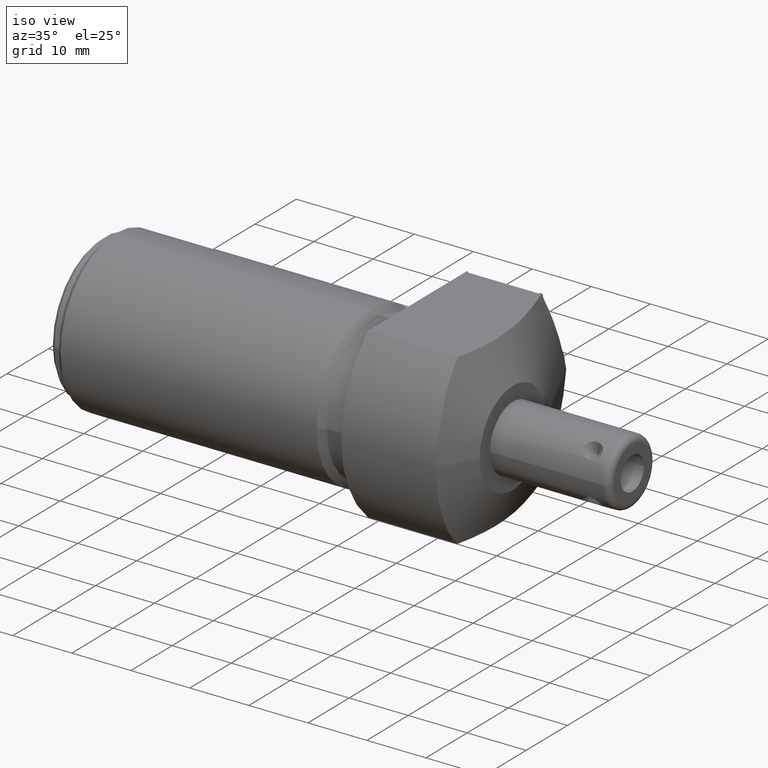
[diagram: clean part render]
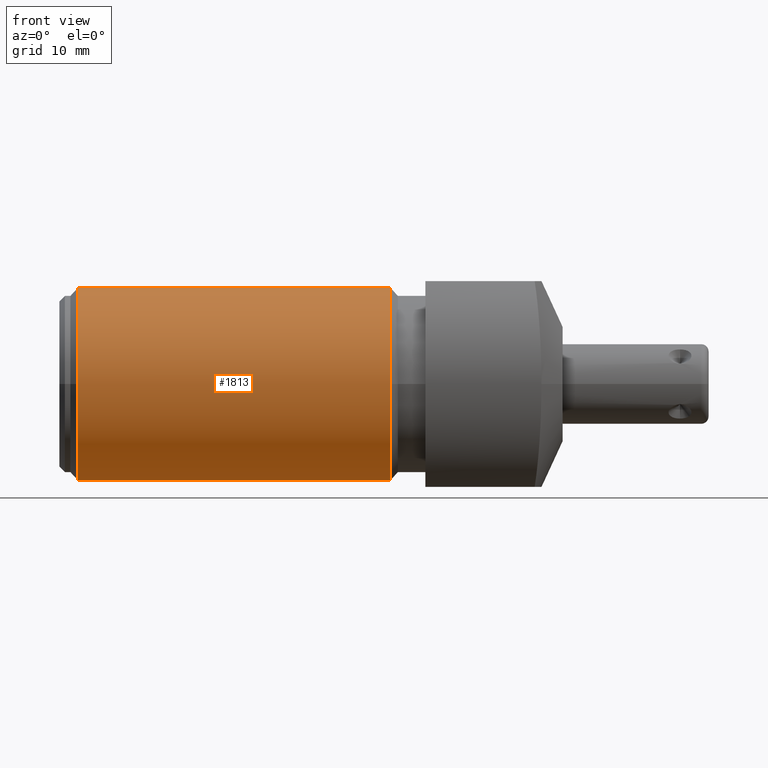
[diagram: tour spotlight — one face highlighted and labeled with its STEP entity id]
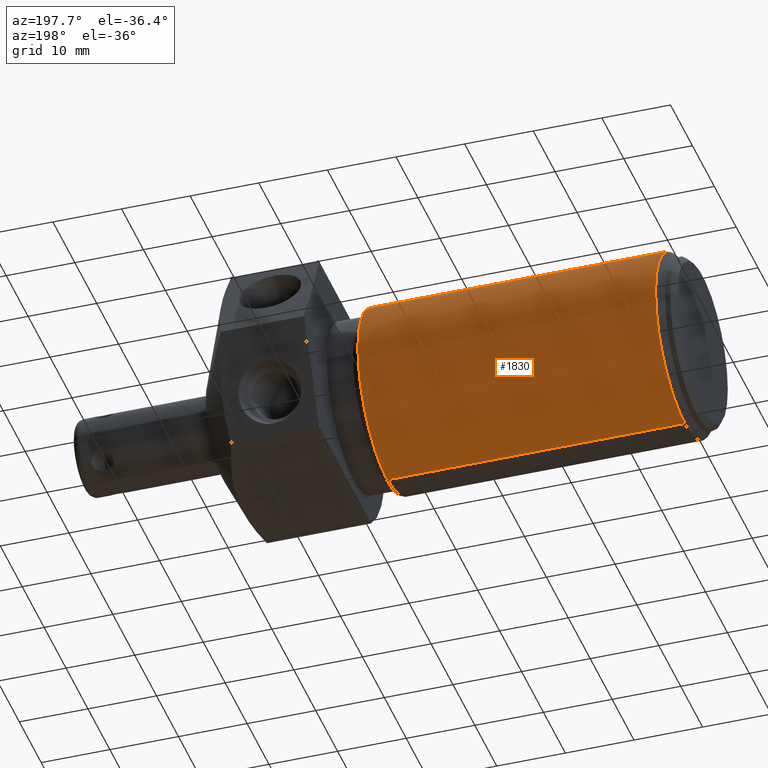
[diagram: tour spotlight — one face highlighted and labeled with its STEP entity id]
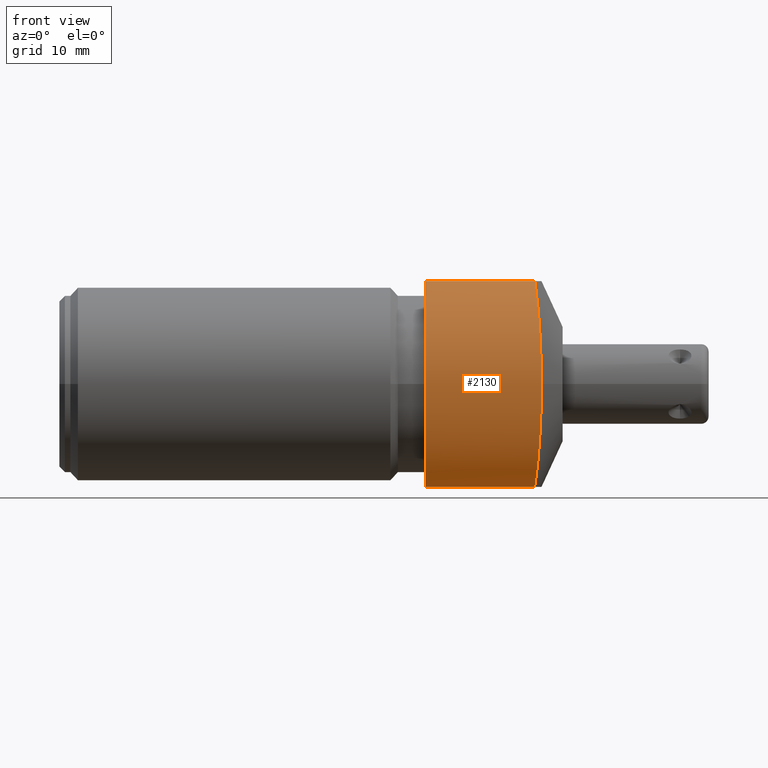
[diagram: tour spotlight — one face highlighted and labeled with its STEP entity id]
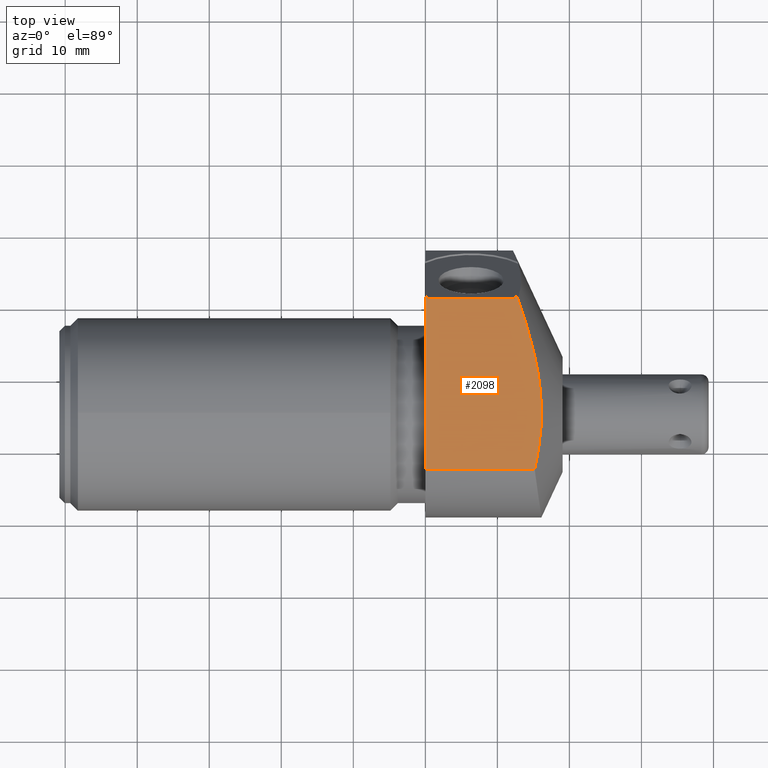
[diagram: tour spotlight — one face highlighted and labeled with its STEP entity id]
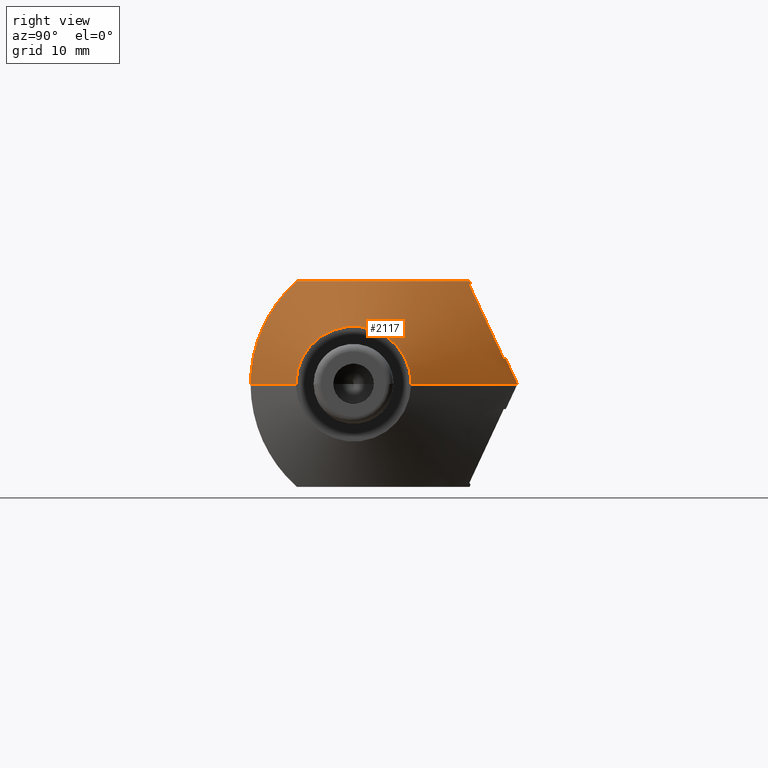
[diagram: tour spotlight — one face highlighted and labeled with its STEP entity id]
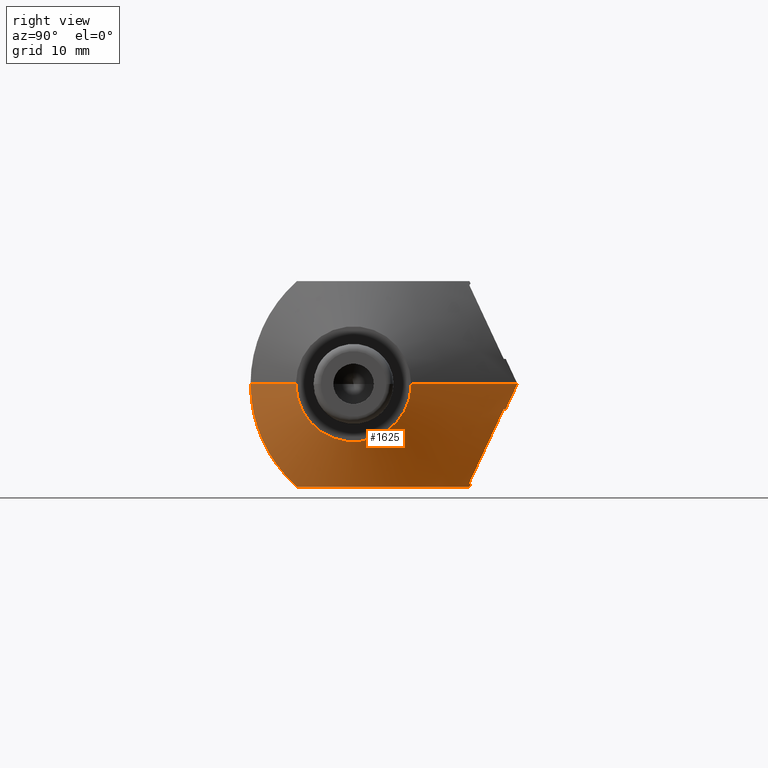
[diagram: tour spotlight — one face highlighted and labeled with its STEP entity id]
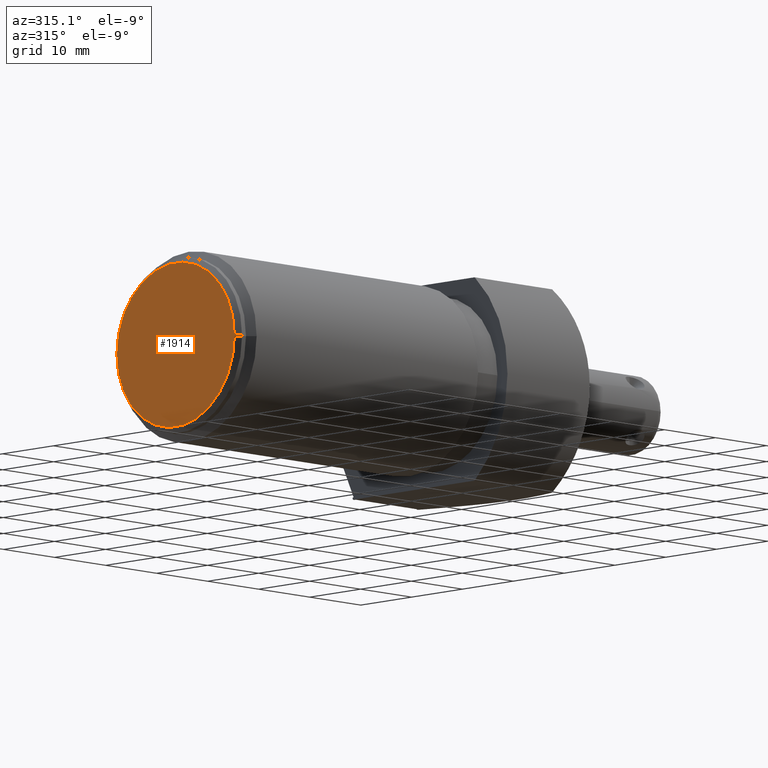
[diagram: tour spotlight — one face highlighted and labeled with its STEP entity id]
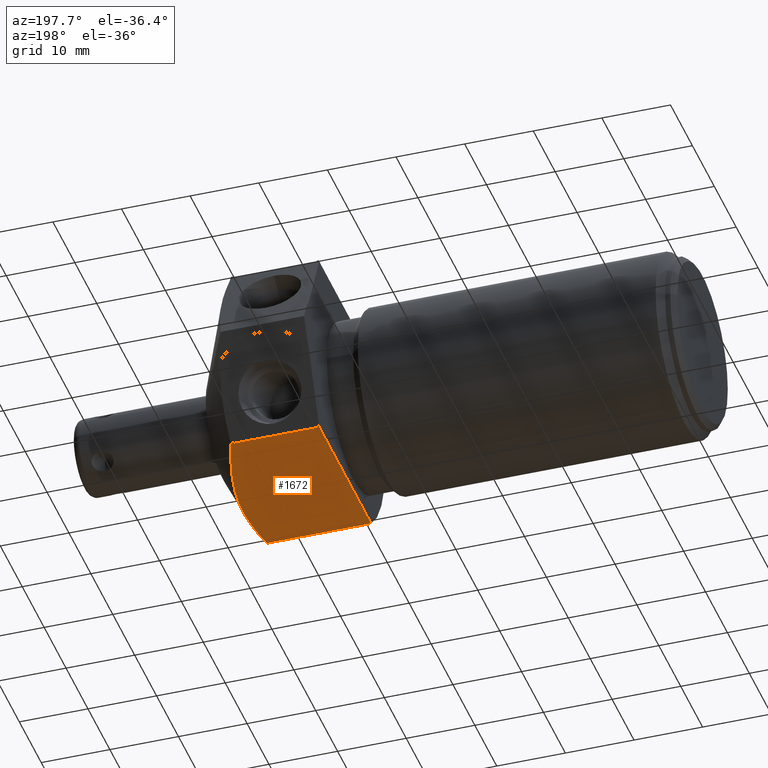
[diagram: tour spotlight — one face highlighted and labeled with its STEP entity id]
A machine part: a face-by-face anatomy tour. The part has 68 B-rep faces; the first image is the clean iso view, then the 8 largest visible faces are spotlighted one at a time (largest first), each with its STEP entity span.

Face 1 — front view, entity #1813. In plain terms, the highlighted cylindrical surface (partial cylindrical patch) has radius 13.3604 mm, axis along (1, 0, 0).
Definition (entity closure, byte-faithful):
#431=CARTESIAN_POINT('',(-1.91E-1,-1.87E-1,0.E0));
#432=DIRECTION('',(1.E0,0.E0,0.E0));
#433=DIRECTION('',(0.E0,0.E0,1.E0));
#434=AXIS2_PLACEMENT_3D('',#431,#432,#433);
#461=DIRECTION('',(-1.E0,0.E0,0.E0));
#462=VECTOR('',#461,1.708E0);
#463=CARTESIAN_POINT('',(-1.91E-1,-1.87E-1,-5.26E-1));
#464=LINE('',#463,#462);
#468=DIRECTION('',(-1.E0,0.E0,0.E0));
#469=VECTOR('',#468,1.708E0);
#470=CARTESIAN_POINT('',(-1.91E-1,-1.87E-1,5.26E-1));
#471=LINE('',#470,#469);
#475=CARTESIAN_POINT('',(-1.91E-1,-1.87E-1,0.E0));
#476=DIRECTION('',(1.E0,0.E0,0.E0));
#477=DIRECTION('',(0.E0,-1.E0,0.E0));
#478=AXIS2_PLACEMENT_3D('',#475,#476,#477);
#491=CARTESIAN_POINT('',(-1.899E0,-1.87E-1,0.E0));
#492=DIRECTION('',(1.E0,0.E0,0.E0));
#493=DIRECTION('',(0.E0,0.E0,1.E0));
#494=AXIS2_PLACEMENT_3D('',#491,#492,#493);
#529=CARTESIAN_POINT('',(-1.899E0,-1.87E-1,0.E0));
#530=DIRECTION('',(1.E0,0.E0,0.E0));
#531=DIRECTION('',(0.E0,-1.E0,0.E0));
#532=AXIS2_PLACEMENT_3D('',#529,#530,#531);
#1447=CARTESIAN_POINT('',(-1.91E-1,-1.87E-1,-5.26E-1));
#1448=CARTESIAN_POINT('',(-1.899E0,-1.87E-1,-5.26E-1));
#1449=VERTEX_POINT('',#1447);
#1450=VERTEX_POINT('',#1448);
#1451=CARTESIAN_POINT('',(-1.91E-1,-1.87E-1,5.26E-1));
#1452=CARTESIAN_POINT('',(-1.899E0,-1.87E-1,5.26E-1));
#1453=VERTEX_POINT('',#1451);
#1454=VERTEX_POINT('',#1452);
#1531=CARTESIAN_POINT('',(-1.91E-1,-7.13E-1,0.E0));
#1532=VERTEX_POINT('',#1531);
#1535=CARTESIAN_POINT('',(-1.899E0,-7.13E-1,0.E0));
#1536=VERTEX_POINT('',#1535);
#1795=CARTESIAN_POINT('',(0.E0,-1.87E-1,0.E0));
#1796=DIRECTION('',(1.E0,0.E0,0.E0));
#1797=DIRECTION('',(0.E0,0.E0,-1.E0));
#1798=AXIS2_PLACEMENT_3D('',#1795,#1796,#1797);
#1799=CYLINDRICAL_SURFACE('',#1798,5.26E-1);
#1801=ORIENTED_EDGE('',*,*,#1800,.T.);
#1803=ORIENTED_EDGE('',*,*,#1802,.F.);
#1805=ORIENTED_EDGE('',*,*,#1804,.F.);
#1807=ORIENTED_EDGE('',*,*,#1806,.F.);
#1808=ORIENTED_EDGE('',*,*,#1783,.T.);
#1810=ORIENTED_EDGE('',*,*,#1809,.T.);
#1811=EDGE_LOOP('',(#1801,#1803,#1805,#1807,#1808,#1810));
#1812=FACE_OUTER_BOUND('',#1811,.F.);
#1813=ADVANCED_FACE('',(#1812),#1799,.T.);
#435=CIRCLE('',#434,5.26E-1);
#479=CIRCLE('',#478,5.26E-1);
#495=CIRCLE('',#494,5.26E-1);
#533=CIRCLE('',#532,5.26E-1);
#1783=EDGE_CURVE('',#1453,#1532,#435,.T.);
#1800=EDGE_CURVE('',#1449,#1450,#464,.T.);
#1802=EDGE_CURVE('',#1536,#1450,#533,.T.);
#1804=EDGE_CURVE('',#1454,#1536,#495,.T.);
#1806=EDGE_CURVE('',#1453,#1454,#471,.T.);
#1809=EDGE_CURVE('',#1532,#1449,#479,.T.);

Face 2 — auxiliary view, entity #1830. In plain terms, the highlighted cylindrical surface (partial cylindrical patch) has radius 13.3604 mm, axis along (1, 0, 0).
Definition (entity closure, byte-faithful):
#439=CARTESIAN_POINT('',(-1.91E-1,-1.87E-1,0.E0));
#440=DIRECTION('',(1.E0,0.E0,0.E0));
#441=DIRECTION('',(0.E0,1.E0,0.E0));
#442=AXIS2_PLACEMENT_3D('',#439,#440,#441);
#461=DIRECTION('',(-1.E0,0.E0,0.E0));
#462=VECTOR('',#461,1.708E0);
#463=CARTESIAN_POINT('',(-1.91E-1,-1.87E-1,-5.26E-1));
#464=LINE('',#463,#462);
#468=DIRECTION('',(-1.E0,0.E0,0.E0));
#469=VECTOR('',#468,1.708E0);
#470=CARTESIAN_POINT('',(-1.91E-1,-1.87E-1,5.26E-1));
#471=LINE('',#470,#469);
#483=CARTESIAN_POINT('',(-1.91E-1,-1.87E-1,0.E0));
#484=DIRECTION('',(1.E0,0.E0,0.E0));
#485=DIRECTION('',(0.E0,0.E0,-1.E0));
#486=AXIS2_PLACEMENT_3D('',#483,#484,#485);
#521=CARTESIAN_POINT('',(-1.899E0,-1.87E-1,0.E0));
#522=DIRECTION('',(1.E0,0.E0,0.E0));
#523=DIRECTION('',(0.E0,1.E0,0.E0));
#524=AXIS2_PLACEMENT_3D('',#521,#522,#523);
#537=CARTESIAN_POINT('',(-1.899E0,-1.87E-1,0.E0));
#538=DIRECTION('',(1.E0,0.E0,0.E0));
#539=DIRECTION('',(0.E0,0.E0,-1.E0));
#540=AXIS2_PLACEMENT_3D('',#537,#538,#539);
#1447=CARTESIAN_POINT('',(-1.91E-1,-1.87E-1,-5.26E-1));
#1448=CARTESIAN_POINT('',(-1.899E0,-1.87E-1,-5.26E-1));
#1449=VERTEX_POINT('',#1447);
#1450=VERTEX_POINT('',#1448);
#1451=CARTESIAN_POINT('',(-1.91E-1,-1.87E-1,5.26E-1));
#1452=CARTESIAN_POINT('',(-1.899E0,-1.87E-1,5.26E-1));
#1453=VERTEX_POINT('',#1451);
#1454=VERTEX_POINT('',#1452);
#1533=CARTESIAN_POINT('',(-1.91E-1,3.39E-1,0.E0));
#1534=VERTEX_POINT('',#1533);
#1537=CARTESIAN_POINT('',(-1.899E0,3.39E-1,0.E0));
#1538=VERTEX_POINT('',#1537);
#1814=CARTESIAN_POINT('',(0.E0,-1.87E-1,0.E0));
#1815=DIRECTION('',(1.E0,0.E0,0.E0));
#1816=DIRECTION('',(0.E0,0.E0,-1.E0));
#1817=AXIS2_PLACEMENT_3D('',#1814,#1815,#1816);
#1818=CYLINDRICAL_SURFACE('',#1817,5.26E-1);
#1819=ORIENTED_EDGE('',*,*,#1800,.F.);
#1821=ORIENTED_EDGE('',*,*,#1820,.T.);
#1822=ORIENTED_EDGE('',*,*,#1785,.T.);
#1823=ORIENTED_EDGE('',*,*,#1806,.T.);
#1825=ORIENTED_EDGE('',*,*,#1824,.F.);
#1827=ORIENTED_EDGE('',*,*,#1826,.F.);
#1828=EDGE_LOOP('',(#1819,#1821,#1822,#1823,#1825,#1827));
#1829=FACE_OUTER_BOUND('',#1828,.F.);
#1830=ADVANCED_FACE('',(#1829),#1818,.T.);
#443=CIRCLE('',#442,5.26E-1);
#487=CIRCLE('',#486,5.26E-1);
#525=CIRCLE('',#524,5.26E-1);
#541=CIRCLE('',#540,5.26E-1);
#1785=EDGE_CURVE('',#1534,#1453,#443,.T.);
#1800=EDGE_CURVE('',#1449,#1450,#464,.T.);
#1806=EDGE_CURVE('',#1453,#1454,#471,.T.);
#1820=EDGE_CURVE('',#1449,#1534,#487,.T.);
#1824=EDGE_CURVE('',#1538,#1454,#525,.T.);
#1826=EDGE_CURVE('',#1450,#1538,#541,.T.);

Face 3 — front view, entity #2130. In plain terms, the highlighted cylindrical surface (partial cylindrical patch) has radius 19.05 mm, axis along (1, 0, 0).
Definition (entity closure, byte-faithful):
#156=CARTESIAN_POINT('',(6.343557007776E-1,-7.5E-1,0.E0));
#157=CARTESIAN_POINT('',(6.343557007776E-1,-7.5E-1,-2.639945227058E-2));
#158=CARTESIAN_POINT('',(6.339228743735E-1,-7.472089192813E-1,
-7.921164799552E-2));
#159=CARTESIAN_POINT('',(6.319914703219E-1,-7.346925548924E-1,
-1.575620260070E-1));
#160=CARTESIAN_POINT('',(6.288224715053E-1,-7.139555821587E-1,
-2.342427704134E-1));
#161=CARTESIAN_POINT('',(6.244924603731E-1,-6.852191351177E-1,
-3.083562685212E-1));
#162=CARTESIAN_POINT('',(6.190914041522E-1,-6.487235541059E-1,
-3.791756269234E-1));
#163=CARTESIAN_POINT('',(6.127404277032E-1,-6.048849800505E-1,
-4.457974419392E-1));
#164=CARTESIAN_POINT('',(6.055634018664E-1,-5.541430465208E-1,
-5.074980845745E-1));
#165=CARTESIAN_POINT('',(6.003168663148E-1,-5.160731810444E-1,
-5.448662348822E-1));
#166=CARTESIAN_POINT('',(5.976003223953E-1,-4.960783708246E-1,-5.625E-1));
#240=DIRECTION('',(1.E0,0.E0,0.E0));
#241=VECTOR('',#240,5.976003223953E-1);
#242=CARTESIAN_POINT('',(0.E0,-4.960783708246E-1,-5.625E-1));
#243=LINE('',#242,#241);
#372=CARTESIAN_POINT('',(0.E0,0.E0,0.E0));
#373=DIRECTION('',(1.E0,0.E0,0.E0));
#374=DIRECTION('',(0.E0,-6.614378277661E-1,7.5E-1));
#375=AXIS2_PLACEMENT_3D('',#372,#373,#374);
#807=DIRECTION('',(1.E0,0.E0,0.E0));
#808=VECTOR('',#807,5.976003223953E-1);
#809=CARTESIAN_POINT('',(0.E0,-4.960783708246E-1,5.625E-1));
#810=LINE('',#809,#808);
#852=CARTESIAN_POINT('',(5.976003223953E-1,-4.960783708246E-1,5.625E-1));
#853=CARTESIAN_POINT('',(6.003148187378E-1,-5.160581100889E-1,
5.448795262156E-1));
#854=CARTESIAN_POINT('',(6.055591584932E-1,-5.541126530407E-1,
5.075310416793E-1));
#855=CARTESIAN_POINT('',(6.127387135068E-1,-6.048732142353E-1,
4.458158248187E-1));
#856=CARTESIAN_POINT('',(6.190931965279E-1,-6.487359359638E-1,
3.791574280828E-1));
#857=CARTESIAN_POINT('',(6.244961663081E-1,-6.852439972541E-1,
3.083035404139E-1));
#858=CARTESIAN_POINT('',(6.288263025028E-1,-7.139808163733E-1,
2.341673035868E-1));
#859=CARTESIAN_POINT('',(6.319941013816E-1,-7.347096588366E-1,
1.574810061401E-1));
#860=CARTESIAN_POINT('',(6.339236696225E-1,-7.472140450314E-1,
7.915054299052E-2));
#861=CARTESIAN_POINT('',(6.343557007776E-1,-7.5E-1,2.637559111290E-2));
#862=CARTESIAN_POINT('',(6.343557007776E-1,-7.5E-1,0.E0));
#1410=CARTESIAN_POINT('',(0.E0,-4.960783708246E-1,-5.625E-1));
#1412=VERTEX_POINT('',#1410);
#1415=CARTESIAN_POINT('',(0.E0,-4.960783708246E-1,5.625E-1));
#1417=VERTEX_POINT('',#1415);
#1422=VERTEX_POINT('',#156);
#1423=VERTEX_POINT('',#166);
#1424=VERTEX_POINT('',#852);
#2118=CARTESIAN_POINT('',(7.5E-1,0.E0,0.E0));
#2119=DIRECTION('',(1.E0,0.E0,0.E0));
#2120=DIRECTION('',(0.E0,0.E0,-1.E0));
#2121=AXIS2_PLACEMENT_3D('',#2118,#2119,#2120);
#2122=CYLINDRICAL_SURFACE('',#2121,7.5E-1);
#2123=ORIENTED_EDGE('',*,*,#1612,.T.);
#2124=ORIENTED_EDGE('',*,*,#1663,.F.);
#2125=ORIENTED_EDGE('',*,*,#1735,.F.);
#2126=ORIENTED_EDGE('',*,*,#2091,.T.);
#2127=ORIENTED_EDGE('',*,*,#2110,.T.);
#2128=EDGE_LOOP('',(#2123,#2124,#2125,#2126,#2127));
#2129=FACE_OUTER_BOUND('',#2128,.F.);
#2130=ADVANCED_FACE('',(#2129),#2122,.T.);
#167=B_SPLINE_CURVE_WITH_KNOTS('',3,(#156,#157,#158,#159,#160,#161,#162,#163,
#164,#165,#166),.UNSPECIFIED.,.F.,.F.,(4,1,1,1,1,1,1,1,4),(0.E0,1.25E-1,2.5E-1,
3.75E-1,5.E-1,6.25E-1,7.5E-1,8.75E-1,1.E0),.UNSPECIFIED.);
#376=CIRCLE('',#375,7.5E-1);
#863=B_SPLINE_CURVE_WITH_KNOTS('',3,(#852,#853,#854,#855,#856,#857,#858,#859,
#860,#861,#862),.UNSPECIFIED.,.F.,.F.,(4,1,1,1,1,1,1,1,4),(0.E0,1.25E-1,2.5E-1,
3.75E-1,5.E-1,6.25E-1,7.5E-1,8.75E-1,1.E0),.UNSPECIFIED.);
#1612=EDGE_CURVE('',#1422,#1423,#167,.T.);
#1663=EDGE_CURVE('',#1412,#1423,#243,.T.);
#1735=EDGE_CURVE('',#1417,#1412,#376,.T.);
#2091=EDGE_CURVE('',#1417,#1424,#810,.T.);
#2110=EDGE_CURVE('',#1424,#1422,#863,.T.);

Face 4 — top view, entity #2098. In plain terms, the highlighted planar face has unit normal (0, 0, -1).
Definition (entity closure, byte-faithful):
#365=DIRECTION('',(0.E0,-1.E0,0.E0));
#366=VECTOR('',#365,9.427231833100E-1);
#367=CARTESIAN_POINT('',(0.E0,4.466448124854E-1,5.625E-1));
#368=LINE('',#367,#366);
#763=DIRECTION('',(1.E0,0.E0,0.E0));
#764=VECTOR('',#763,4.708895888355E-1);
#765=CARTESIAN_POINT('',(1.455520558224E-2,4.356110332957E-1,5.625E-1));
#766=LINE('',#765,#764);
#770=CARTESIAN_POINT('',(4.902353046711E-1,4.466448124854E-1,5.625E-1));
#771=CARTESIAN_POINT('',(4.886646367688E-1,4.429555228695E-1,5.625E-1));
#772=CARTESIAN_POINT('',(4.870681668301E-1,4.392774371932E-1,5.625E-1));
#773=CARTESIAN_POINT('',(4.854447944178E-1,4.356110332957E-1,5.625E-1));
#778=DIRECTION('',(1.E0,0.E0,0.E0));
#779=VECTOR('',#778,1.155058500244E-2);
#780=CARTESIAN_POINT('',(4.902353046711E-1,4.466448124854E-1,5.625E-1));
#781=LINE('',#780,#779);
#785=CARTESIAN_POINT('',(5.976003223953E-1,-4.960783708246E-1,5.625E-1));
#786=CARTESIAN_POINT('',(6.021407524143E-1,-4.758588651369E-1,5.625E-1));
#787=CARTESIAN_POINT('',(6.104514783692E-1,-4.357802778535E-1,5.625E-1));
#788=CARTESIAN_POINT('',(6.204075291324E-1,-3.771548878173E-1,5.625E-1));
#789=CARTESIAN_POINT('',(6.279361168985E-1,-3.186721943803E-1,5.625E-1));
#790=CARTESIAN_POINT('',(6.328512699435E-1,-2.600652730783E-1,5.625E-1));
#791=CARTESIAN_POINT('',(6.349862548739E-1,-2.011988096233E-1,5.625E-1));
#792=CARTESIAN_POINT('',(6.342363211736E-1,-1.422649673007E-1,5.625E-1));
#793=CARTESIAN_POINT('',(6.306390588556E-1,-8.351015384539E-2,5.625E-1));
#794=CARTESIAN_POINT('',(6.243475141017E-1,-2.500592854090E-2,5.625E-1));
#795=CARTESIAN_POINT('',(6.155402094171E-1,3.350035693106E-2,5.625E-1));
#796=CARTESIAN_POINT('',(6.043203368512E-1,9.262936609352E-2,5.625E-1));
#797=CARTESIAN_POINT('',(5.906473006330E-1,1.533324750149E-1,5.625E-1));
#798=CARTESIAN_POINT('',(5.743002465766E-1,2.168719565092E-1,5.625E-1));
#799=CARTESIAN_POINT('',(5.547961523273E-1,2.849840113853E-1,5.625E-1));
#800=CARTESIAN_POINT('',(5.314300087252E-1,3.597273189974E-1,5.625E-1));
#801=CARTESIAN_POINT('',(5.122456507260E-1,4.166504982102E-1,5.625E-1));
#802=CARTESIAN_POINT('',(5.017858896735E-1,4.466448124854E-1,5.625E-1));
#807=DIRECTION('',(1.E0,0.E0,0.E0));
#808=VECTOR('',#807,5.976003223953E-1);
#809=CARTESIAN_POINT('',(0.E0,-4.960783708246E-1,5.625E-1));
#810=LINE('',#809,#808);
#814=DIRECTION('',(1.E0,0.E0,0.E0));
#815=VECTOR('',#814,9.764695328939E-3);
#816=CARTESIAN_POINT('',(0.E0,4.466448124854E-1,5.625E-1));
#817=LINE('',#816,#815);
#821=CARTESIAN_POINT('',(1.455520558224E-2,4.356110332957E-1,5.625E-1));
#822=CARTESIAN_POINT('',(1.293183316993E-2,4.392774371932E-1,5.625E-1));
#823=CARTESIAN_POINT('',(1.133536323117E-2,4.429555228695E-1,5.625E-1));
#824=CARTESIAN_POINT('',(9.764695328939E-3,4.466448124854E-1,5.625E-1));
#852=CARTESIAN_POINT('',(5.976003223953E-1,-4.960783708246E-1,5.625E-1));
#1414=CARTESIAN_POINT('',(0.E0,4.466448124854E-1,5.625E-1));
#1415=CARTESIAN_POINT('',(0.E0,-4.960783708246E-1,5.625E-1));
#1416=VERTEX_POINT('',#1414);
#1417=VERTEX_POINT('',#1415);
#1424=VERTEX_POINT('',#852);
#1426=VERTEX_POINT('',#802);
#1459=CARTESIAN_POINT('',(9.764695328939E-3,4.466448124854E-1,5.625E-1));
#1461=VERTEX_POINT('',#1459);
#1463=CARTESIAN_POINT('',(1.455520558224E-2,4.356110332957E-1,5.625E-1));
#1464=CARTESIAN_POINT('',(4.854447944178E-1,4.356110332957E-1,5.625E-1));
#1465=VERTEX_POINT('',#1463);
#1466=VERTEX_POINT('',#1464);
#1467=VERTEX_POINT('',#770);
#2081=CARTESIAN_POINT('',(0.E0,4.466448124854E-1,5.625E-1));
#2082=DIRECTION('',(0.E0,0.E0,-1.E0));
#2083=DIRECTION('',(0.E0,-1.E0,0.E0));
#2084=AXIS2_PLACEMENT_3D('',#2081,#2082,#2083);
#2085=PLANE('',#2084);
#2086=ORIENTED_EDGE('',*,*,#2064,.T.);
#2087=ORIENTED_EDGE('',*,*,#2049,.F.);
#2088=ORIENTED_EDGE('',*,*,#2011,.T.);
#2090=ORIENTED_EDGE('',*,*,#2089,.F.);
#2092=ORIENTED_EDGE('',*,*,#2091,.F.);
#2093=ORIENTED_EDGE('',*,*,#1733,.F.);
#2094=ORIENTED_EDGE('',*,*,#1996,.T.);
#2095=ORIENTED_EDGE('',*,*,#2025,.F.);
#2096=EDGE_LOOP('',(#2086,#2087,#2088,#2090,#2092,#2093,#2094,#2095));
#2097=FACE_OUTER_BOUND('',#2096,.F.);
#2098=ADVANCED_FACE('',(#2097),#2085,.F.);
#774=B_SPLINE_CURVE_WITH_KNOTS('',3,(#770,#771,#772,#773),.UNSPECIFIED.,.F.,.F.,
(4,4),(0.E0,1.E0),.UNSPECIFIED.);
#803=B_SPLINE_CURVE_WITH_KNOTS('',3,(#785,#786,#787,#788,#789,#790,#791,#792,
#793,#794,#795,#796,#797,#798,#799,#800,#801,#802),.UNSPECIFIED.,.F.,.F.,(4,1,1,
1,1,1,1,1,1,1,1,1,1,1,1,4),(0.E0,6.666666666667E-2,1.333333333333E-1,2.E-1,
2.666666666667E-1,3.333333333333E-1,4.E-1,4.666666666667E-1,5.333333333333E-1,
6.E-1,6.666666666667E-1,7.333333333333E-1,8.E-1,8.666666666667E-1,
9.333333333333E-1,1.E0),.UNSPECIFIED.);
#825=B_SPLINE_CURVE_WITH_KNOTS('',3,(#821,#822,#823,#824),.UNSPECIFIED.,.F.,.F.,
(4,4),(0.E0,1.E0),.UNSPECIFIED.);
#1733=EDGE_CURVE('',#1416,#1417,#368,.T.);
#1996=EDGE_CURVE('',#1416,#1461,#817,.T.);
#2011=EDGE_CURVE('',#1467,#1426,#781,.T.);
#2025=EDGE_CURVE('',#1465,#1461,#825,.T.);
#2049=EDGE_CURVE('',#1467,#1466,#774,.T.);
#2064=EDGE_CURVE('',#1465,#1466,#766,.T.);
#2089=EDGE_CURVE('',#1424,#1426,#803,.T.);
#2091=EDGE_CURVE('',#1417,#1424,#810,.T.);

Face 5 — right view, entity #2117. In plain terms, the highlighted conical surface has half-angle 65 deg.
Definition (entity closure, byte-faithful):
#123=CARTESIAN_POINT('',(7.5E-1,-1.87E-1,0.E0));
#124=DIRECTION('',(-1.E0,0.E0,0.E0));
#125=DIRECTION('',(0.E0,-1.E0,0.E0));
#126=AXIS2_PLACEMENT_3D('',#123,#124,#125);
#156=CARTESIAN_POINT('',(6.343557007776E-1,-7.5E-1,0.E0));
#668=CARTESIAN_POINT('',(5.036072321582E-1,6.452606937239E-1,
1.365668681608E-1));
#669=CARTESIAN_POINT('',(5.004837866314E-1,6.557340473408E-1,
1.141066888484E-1));
#670=CARTESIAN_POINT('',(4.932496450211E-1,6.768199187585E-1,
6.888789166831E-2));
#671=CARTESIAN_POINT('',(4.841175312067E-1,6.981867943694E-1,
2.306647905092E-2));
#672=CARTESIAN_POINT('',(4.791018906763E-1,7.089428701975E-1,0.E0));
#693=CARTESIAN_POINT('',(5.017858896735E-1,4.466448124854E-1,5.625E-1));
#694=CARTESIAN_POINT('',(5.020978388047E-1,4.476346522730E-1,
5.603772817251E-1));
#695=CARTESIAN_POINT('',(5.027133813726E-1,4.496142133101E-1,
5.561320993816E-1));
#696=CARTESIAN_POINT('',(5.033121032614E-1,4.515935435856E-1,
5.518874119077E-1));
#697=CARTESIAN_POINT('',(5.036072321582E-1,4.525831524236E-1,
5.497651889061E-1));
#726=CARTESIAN_POINT('',(5.088461842540E-1,4.460417289474E-1,
5.401313009894E-1));
#727=CARTESIAN_POINT('',(5.119136720244E-1,4.564632112213E-1,
5.177823601310E-1));
#728=CARTESIAN_POINT('',(5.170971932528E-1,4.773055134610E-1,
4.730858987386E-1));
#729=CARTESIAN_POINT('',(5.218417056262E-1,5.085565197783E-1,
4.060678994181E-1));
#730=CARTESIAN_POINT('',(5.234414757905E-1,5.398603729593E-1,
3.389365696330E-1));
#731=CARTESIAN_POINT('',(5.218414140613E-1,5.711639626308E-1,
2.718058049455E-1));
#732=CARTESIAN_POINT('',(5.170966721897E-1,6.024145862594E-1,
2.047886263038E-1));
#733=CARTESIAN_POINT('',(5.119133954888E-1,6.232554186874E-1,
1.600953169329E-1));
#734=CARTESIAN_POINT('',(5.088461842540E-1,6.336759614594E-1,
1.377483908427E-1));
#785=CARTESIAN_POINT('',(5.976003223953E-1,-4.960783708246E-1,5.625E-1));
#786=CARTESIAN_POINT('',(6.021407524143E-1,-4.758588651369E-1,5.625E-1));
#787=CARTESIAN_POINT('',(6.104514783692E-1,-4.357802778535E-1,5.625E-1));
#788=CARTESIAN_POINT('',(6.204075291324E-1,-3.771548878173E-1,5.625E-1));
#789=CARTESIAN_POINT('',(6.279361168985E-1,-3.186721943803E-1,5.625E-1));
#790=CARTESIAN_POINT('',(6.328512699435E-1,-2.600652730783E-1,5.625E-1));
#791=CARTESIAN_POINT('',(6.349862548739E-1,-2.011988096233E-1,5.625E-1));
#792=CARTESIAN_POINT('',(6.342363211736E-1,-1.422649673007E-1,5.625E-1));
#793=CARTESIAN_POINT('',(6.306390588556E-1,-8.351015384539E-2,5.625E-1));
#794=CARTESIAN_POINT('',(6.243475141017E-1,-2.500592854090E-2,5.625E-1));
#795=CARTESIAN_POINT('',(6.155402094171E-1,3.350035693106E-2,5.625E-1));
#796=CARTESIAN_POINT('',(6.043203368512E-1,9.262936609352E-2,5.625E-1));
#797=CARTESIAN_POINT('',(5.906473006330E-1,1.533324750149E-1,5.625E-1));
#798=CARTESIAN_POINT('',(5.743002465766E-1,2.168719565092E-1,5.625E-1));
#799=CARTESIAN_POINT('',(5.547961523273E-1,2.849840113853E-1,5.625E-1));
#800=CARTESIAN_POINT('',(5.314300087252E-1,3.597273189974E-1,5.625E-1));
#801=CARTESIAN_POINT('',(5.122456507260E-1,4.166504982102E-1,5.625E-1));
#802=CARTESIAN_POINT('',(5.017858896735E-1,4.466448124854E-1,5.625E-1));
#829=CARTESIAN_POINT('',(5.036072321582E-1,6.452606937239E-1,
1.365668681608E-1));
#830=CARTESIAN_POINT('',(5.044973959964E-1,6.432971431608E-1,
1.367439547460E-1));
#831=CARTESIAN_POINT('',(5.062607421928E-1,6.394027626687E-1,
1.371182893074E-1));
#832=CARTESIAN_POINT('',(5.079900527902E-1,6.355739501237E-1,
1.375319674393E-1));
#833=CARTESIAN_POINT('',(5.088461842540E-1,6.336759614594E-1,
1.377483908427E-1));
#838=DIRECTION('',(4.226182617407E-1,-9.063077870367E-1,0.E0));
#839=VECTOR('',#838,6.409995351547E-1);
#840=CARTESIAN_POINT('',(4.791018906763E-1,7.089428701975E-1,0.E0));
#841=LINE('',#840,#839);
#845=DIRECTION('',(4.226182617407E-1,9.063077870367E-1,0.E0));
#846=VECTOR('',#845,2.736377239027E-1);
#847=CARTESIAN_POINT('',(6.343557007776E-1,-7.5E-1,0.E0));
#848=LINE('',#847,#846);
#852=CARTESIAN_POINT('',(5.976003223953E-1,-4.960783708246E-1,5.625E-1));
#853=CARTESIAN_POINT('',(6.003148187378E-1,-5.160581100889E-1,
5.448795262156E-1));
#854=CARTESIAN_POINT('',(6.055591584932E-1,-5.541126530407E-1,
5.075310416793E-1));
#855=CARTESIAN_POINT('',(6.127387135068E-1,-6.048732142353E-1,
4.458158248187E-1));
#856=CARTESIAN_POINT('',(6.190931965279E-1,-6.487359359638E-1,
3.791574280828E-1));
#857=CARTESIAN_POINT('',(6.244961663081E-1,-6.852439972541E-1,
3.083035404139E-1));
#858=CARTESIAN_POINT('',(6.288263025028E-1,-7.139808163733E-1,
2.341673035868E-1));
#859=CARTESIAN_POINT('',(6.319941013816E-1,-7.347096588366E-1,
1.574810061401E-1));
#860=CARTESIAN_POINT('',(6.339236696225E-1,-7.472140450314E-1,
7.915054299052E-2));
#861=CARTESIAN_POINT('',(6.343557007776E-1,-7.5E-1,2.637559111290E-2));
#862=CARTESIAN_POINT('',(6.343557007776E-1,-7.5E-1,0.E0));
#867=CARTESIAN_POINT('',(5.088461842540E-1,4.460417289474E-1,
5.401313009894E-1));
#868=CARTESIAN_POINT('',(5.079900527902E-1,4.470959425985E-1,
5.417243589410E-1));
#869=CARTESIAN_POINT('',(5.062607421928E-1,4.492401600280E-1,
5.449233066923E-1));
#870=CARTESIAN_POINT('',(5.044973959964E-1,4.514566626452E-1,
5.481471928456E-1));
#871=CARTESIAN_POINT('',(5.036072321582E-1,4.525831524236E-1,
5.497651889061E-1));
#1418=CARTESIAN_POINT('',(7.5E-1,1.28E-1,0.E0));
#1419=CARTESIAN_POINT('',(7.5E-1,-5.02E-1,0.E0));
#1420=VERTEX_POINT('',#1418);
#1421=VERTEX_POINT('',#1419);
#1422=VERTEX_POINT('',#156);
#1424=VERTEX_POINT('',#852);
#1426=VERTEX_POINT('',#802);
#1427=CARTESIAN_POINT('',(4.791018906763E-1,7.089428701975E-1,0.E0));
#1428=VERTEX_POINT('',#1427);
#1516=CARTESIAN_POINT('',(5.036072321582E-1,4.525831524236E-1,
5.497651889061E-1));
#1517=VERTEX_POINT('',#1516);
#1518=VERTEX_POINT('',#726);
#1519=VERTEX_POINT('',#734);
#1520=VERTEX_POINT('',#829);
#2099=CARTESIAN_POINT('',(6.145509453382E-1,-1.87E-1,0.E0));
#2100=DIRECTION('',(-1.E0,0.E0,0.E0));
#2101=DIRECTION('',(0.E0,1.E0,0.E0));
#2102=AXIS2_PLACEMENT_3D('',#2099,#2100,#2101);
#2103=CONICAL_SURFACE('',#2102,6.054714350988E-1,6.5E1);
#2104=ORIENTED_EDGE('',*,*,#2069,.T.);
#2105=ORIENTED_EDGE('',*,*,#2039,.F.);
#2106=ORIENTED_EDGE('',*,*,#1984,.T.);
#2107=ORIENTED_EDGE('',*,*,#1617,.T.);
#2108=ORIENTED_EDGE('',*,*,#1588,.F.);
#2109=ORIENTED_EDGE('',*,*,#1614,.F.);
#2111=ORIENTED_EDGE('',*,*,#2110,.F.);
#2112=ORIENTED_EDGE('',*,*,#2089,.T.);
#2113=ORIENTED_EDGE('',*,*,#2009,.T.);
#2114=ORIENTED_EDGE('',*,*,#2053,.F.);
#2115=EDGE_LOOP('',(#2104,#2105,#2106,#2107,#2108,#2109,#2111,#2112,#2113,
#2114));
#2116=FACE_OUTER_BOUND('',#2115,.F.);
#2117=ADVANCED_FACE('',(#2116),#2103,.T.);
#127=CIRCLE('',#126,3.15E-1);
#673=B_SPLINE_CURVE_WITH_KNOTS('',3,(#668,#669,#670,#671,#672),.UNSPECIFIED.,
.F.,.F.,(4,1,4),(0.E0,5.E-1,1.E0),.UNSPECIFIED.);
#698=B_SPLINE_CURVE_WITH_KNOTS('',3,(#693,#694,#695,#696,#697),.UNSPECIFIED.,
.F.,.F.,(4,1,4),(0.E0,5.E-1,1.E0),.UNSPECIFIED.);
#735=B_SPLINE_CURVE_WITH_KNOTS('',3,(#726,#727,#728,#729,#730,#731,#732,#733,
#734),.UNSPECIFIED.,.F.,.F.,(4,1,1,1,1,1,4),(0.E0,1.666666666667E-1,
3.333333333333E-1,5.E-1,6.666666666667E-1,8.333333333333E-1,1.E0),
.UNSPECIFIED.);
#803=B_SPLINE_CURVE_WITH_KNOTS('',3,(#785,#786,#787,#788,#789,#790,#791,#792,
#793,#794,#795,#796,#797,#798,#799,#800,#801,#802),.UNSPECIFIED.,.F.,.F.,(4,1,1,
1,1,1,1,1,1,1,1,1,1,1,1,4),(0.E0,6.666666666667E-2,1.333333333333E-1,2.E-1,
2.666666666667E-1,3.333333333333E-1,4.E-1,4.666666666667E-1,5.333333333333E-1,
6.E-1,6.666666666667E-1,7.333333333333E-1,8.E-1,8.666666666667E-1,
9.333333333333E-1,1.E0),.UNSPECIFIED.);
#834=B_SPLINE_CURVE_WITH_KNOTS('',3,(#829,#830,#831,#832,#833),.UNSPECIFIED.,
.F.,.F.,(4,1,4),(0.E0,5.E-1,1.E0),.UNSPECIFIED.);
#863=B_SPLINE_CURVE_WITH_KNOTS('',3,(#852,#853,#854,#855,#856,#857,#858,#859,
#860,#861,#862),.UNSPECIFIED.,.F.,.F.,(4,1,1,1,1,1,1,1,4),(0.E0,1.25E-1,2.5E-1,
3.75E-1,5.E-1,6.25E-1,7.5E-1,8.75E-1,1.E0),.UNSPECIFIED.);
#872=B_SPLINE_CURVE_WITH_KNOTS('',3,(#867,#868,#869,#870,#871),.UNSPECIFIED.,
.F.,.F.,(4,1,4),(0.E0,5.E-1,1.E0),.UNSPECIFIED.);
#1588=EDGE_CURVE('',#1421,#1420,#127,.T.);
#1614=EDGE_CURVE('',#1422,#1421,#848,.T.);
#1617=EDGE_CURVE('',#1428,#1420,#841,.T.);
#1984=EDGE_CURVE('',#1520,#1428,#673,.T.);
#2009=EDGE_CURVE('',#1426,#1517,#698,.T.);
#2039=EDGE_CURVE('',#1520,#1519,#834,.T.);
#2053=EDGE_CURVE('',#1518,#1517,#872,.T.);
#2069=EDGE_CURVE('',#1518,#1519,#735,.T.);
#2089=EDGE_CURVE('',#1424,#1426,#803,.T.);
#2110=EDGE_CURVE('',#1424,#1422,#863,.T.);

Face 6 — right view, entity #1625. In plain terms, the highlighted conical surface has half-angle 65 deg.
Definition (entity closure, byte-faithful):
#114=CARTESIAN_POINT('',(7.5E-1,-1.87E-1,0.E0));
#115=DIRECTION('',(-1.E0,0.E0,0.E0));
#116=DIRECTION('',(0.E0,1.E0,0.E0));
#117=AXIS2_PLACEMENT_3D('',#114,#115,#116);
#147=CARTESIAN_POINT('',(5.036072321582E-1,4.525831524236E-1,
-5.497651889061E-1));
#148=CARTESIAN_POINT('',(5.044973959964E-1,4.514566626452E-1,
-5.481471928456E-1));
#149=CARTESIAN_POINT('',(5.062607421928E-1,4.492401600280E-1,
-5.449233066923E-1));
#150=CARTESIAN_POINT('',(5.079900527902E-1,4.470959425985E-1,
-5.417243589410E-1));
#151=CARTESIAN_POINT('',(5.088461842540E-1,4.460417289474E-1,
-5.401313009894E-1));
#156=CARTESIAN_POINT('',(6.343557007776E-1,-7.5E-1,0.E0));
#157=CARTESIAN_POINT('',(6.343557007776E-1,-7.5E-1,-2.639945227058E-2));
#158=CARTESIAN_POINT('',(6.339228743735E-1,-7.472089192813E-1,
-7.921164799552E-2));
#159=CARTESIAN_POINT('',(6.319914703219E-1,-7.346925548924E-1,
-1.575620260070E-1));
#160=CARTESIAN_POINT('',(6.288224715053E-1,-7.139555821587E-1,
-2.342427704134E-1));
#161=CARTESIAN_POINT('',(6.244924603731E-1,-6.852191351177E-1,
-3.083562685212E-1));
#162=CARTESIAN_POINT('',(6.190914041522E-1,-6.487235541059E-1,
-3.791756269234E-1));
#163=CARTESIAN_POINT('',(6.127404277032E-1,-6.048849800505E-1,
-4.457974419392E-1));
#164=CARTESIAN_POINT('',(6.055634018664E-1,-5.541430465208E-1,
-5.074980845745E-1));
#165=CARTESIAN_POINT('',(6.003168663148E-1,-5.160731810444E-1,
-5.448662348822E-1));
#166=CARTESIAN_POINT('',(5.976003223953E-1,-4.960783708246E-1,-5.625E-1));
#171=CARTESIAN_POINT('',(5.088461842540E-1,6.336759614594E-1,
-1.377483908427E-1));
#172=CARTESIAN_POINT('',(5.079900527902E-1,6.355739501237E-1,
-1.375319674393E-1));
#173=CARTESIAN_POINT('',(5.062607421928E-1,6.394027626687E-1,
-1.371182893074E-1));
#174=CARTESIAN_POINT('',(5.044973959964E-1,6.432971431608E-1,
-1.367439547460E-1));
#175=CARTESIAN_POINT('',(5.036072321582E-1,6.452606937239E-1,
-1.365668681608E-1));
#188=CARTESIAN_POINT('',(5.088461842540E-1,6.336759614594E-1,
-1.377483908427E-1));
#189=CARTESIAN_POINT('',(5.119136720244E-1,6.232544791855E-1,
-1.600973317011E-1));
#190=CARTESIAN_POINT('',(5.170971932528E-1,6.024121769458E-1,
-2.047937930934E-1));
#191=CARTESIAN_POINT('',(5.218417056262E-1,5.711611706284E-1,
-2.718117924140E-1));
#192=CARTESIAN_POINT('',(5.234414757905E-1,5.398573174475E-1,
-3.389431221991E-1));
#193=CARTESIAN_POINT('',(5.218414140613E-1,5.085537277759E-1,
-4.060738868866E-1));
#194=CARTESIAN_POINT('',(5.170966721897E-1,4.773031041474E-1,
-4.730910655283E-1));
#195=CARTESIAN_POINT('',(5.119133954888E-1,4.564622717194E-1,
-5.177843748992E-1));
#196=CARTESIAN_POINT('',(5.088461842540E-1,4.460417289474E-1,
-5.401313009894E-1));
#247=CARTESIAN_POINT('',(5.017858896735E-1,4.466448124854E-1,-5.625E-1));
#248=CARTESIAN_POINT('',(5.124285199508E-1,4.161261041085E-1,-5.625E-1));
#249=CARTESIAN_POINT('',(5.319160560046E-1,3.582675629128E-1,-5.625E-1));
#250=CARTESIAN_POINT('',(5.555809071998E-1,2.823954536952E-1,-5.625E-1));
#251=CARTESIAN_POINT('',(5.751828089178E-1,2.136443540677E-1,-5.625E-1));
#252=CARTESIAN_POINT('',(5.915058484384E-1,1.497828566668E-1,-5.625E-1));
#253=CARTESIAN_POINT('',(6.050737611444E-1,8.899300830255E-2,-5.625E-1));
#254=CARTESIAN_POINT('',(6.161345734624E-1,2.998187906071E-2,-5.625E-1));
#255=CARTESIAN_POINT('',(6.247563065770E-1,-2.823001335806E-2,-5.625E-1));
#256=CARTESIAN_POINT('',(6.308640061414E-1,-8.629067168121E-2,-5.625E-1));
#257=CARTESIAN_POINT('',(6.343074256497E-1,-1.444910150945E-1,-5.625E-1));
#258=CARTESIAN_POINT('',(6.349560496138E-1,-2.028117433477E-1,-5.625E-1));
#259=CARTESIAN_POINT('',(6.327805426207E-1,-2.610799655521E-1,-5.625E-1));
#260=CARTESIAN_POINT('',(6.278766368966E-1,-3.191645706285E-1,-5.625E-1));
#261=CARTESIAN_POINT('',(6.203865509863E-1,-3.772668225426E-1,-5.625E-1));
#262=CARTESIAN_POINT('',(6.104691332851E-1,-4.356817760415E-1,-5.625E-1));
#263=CARTESIAN_POINT('',(6.021538478645E-1,-4.758005482973E-1,-5.625E-1));
#264=CARTESIAN_POINT('',(5.976003223953E-1,-4.960783708246E-1,-5.625E-1));
#628=CARTESIAN_POINT('',(5.036072321582E-1,4.525831524236E-1,
-5.497651889061E-1));
#629=CARTESIAN_POINT('',(5.033121042958E-1,4.515935470542E-1,
-5.518874044695E-1));
#630=CARTESIAN_POINT('',(5.027133834995E-1,4.496142202441E-1,
-5.561320845116E-1));
#631=CARTESIAN_POINT('',(5.020978398968E-1,4.476346557384E-1,
-5.603772742936E-1));
#632=CARTESIAN_POINT('',(5.017858896735E-1,4.466448124854E-1,-5.625E-1));
#637=CARTESIAN_POINT('',(4.791018906763E-1,7.089428701975E-1,0.E0));
#638=CARTESIAN_POINT('',(4.841175794509E-1,6.981866909093E-1,
-2.306670092182E-2));
#639=CARTESIAN_POINT('',(4.932497257403E-1,6.768197103861E-1,
-6.888833852417E-2));
#640=CARTESIAN_POINT('',(5.004838178306E-1,6.557339427254E-1,
-1.141069131969E-1));
#641=CARTESIAN_POINT('',(5.036072321582E-1,6.452606937239E-1,
-1.365668681608E-1));
#838=DIRECTION('',(4.226182617407E-1,-9.063077870367E-1,0.E0));
#839=VECTOR('',#838,6.409995351547E-1);
#840=CARTESIAN_POINT('',(4.791018906763E-1,7.089428701975E-1,0.E0));
#841=LINE('',#840,#839);
#845=DIRECTION('',(4.226182617407E-1,9.063077870367E-1,0.E0));
#846=VECTOR('',#845,2.736377239027E-1);
#847=CARTESIAN_POINT('',(6.343557007776E-1,-7.5E-1,0.E0));
#848=LINE('',#847,#846);
#1418=CARTESIAN_POINT('',(7.5E-1,1.28E-1,0.E0));
#1419=CARTESIAN_POINT('',(7.5E-1,-5.02E-1,0.E0));
#1420=VERTEX_POINT('',#1418);
#1421=VERTEX_POINT('',#1419);
#1422=VERTEX_POINT('',#156);
#1423=VERTEX_POINT('',#166);
#1425=VERTEX_POINT('',#247);
#1427=CARTESIAN_POINT('',(4.791018906763E-1,7.089428701975E-1,0.E0));
#1428=VERTEX_POINT('',#1427);
#1492=CARTESIAN_POINT('',(5.036072321582E-1,4.525831524236E-1,
-5.497651889061E-1));
#1493=VERTEX_POINT('',#1492);
#1494=CARTESIAN_POINT('',(5.088461842540E-1,4.460417289474E-1,
-5.401313009894E-1));
#1495=VERTEX_POINT('',#1494);
#1529=VERTEX_POINT('',#188);
#1530=VERTEX_POINT('',#175);
#1599=CARTESIAN_POINT('',(6.145509453382E-1,-1.87E-1,0.E0));
#1600=DIRECTION('',(-1.E0,0.E0,0.E0));
#1601=DIRECTION('',(0.E0,1.E0,0.E0));
#1602=AXIS2_PLACEMENT_3D('',#1599,#1600,#1601);
#1603=CONICAL_SURFACE('',#1602,6.054714350988E-1,6.5E1);
#1605=ORIENTED_EDGE('',*,*,#1604,.T.);
#1607=ORIENTED_EDGE('',*,*,#1606,.F.);
#1609=ORIENTED_EDGE('',*,*,#1608,.T.);
#1611=ORIENTED_EDGE('',*,*,#1610,.T.);
#1613=ORIENTED_EDGE('',*,*,#1612,.F.);
#1615=ORIENTED_EDGE('',*,*,#1614,.T.);
#1616=ORIENTED_EDGE('',*,*,#1586,.F.);
#1618=ORIENTED_EDGE('',*,*,#1617,.F.);
#1620=ORIENTED_EDGE('',*,*,#1619,.T.);
#1622=ORIENTED_EDGE('',*,*,#1621,.F.);
#1623=EDGE_LOOP('',(#1605,#1607,#1609,#1611,#1613,#1615,#1616,#1618,#1620,
#1622));
#1624=FACE_OUTER_BOUND('',#1623,.F.);
#1625=ADVANCED_FACE('',(#1624),#1603,.T.);
#118=CIRCLE('',#117,3.15E-1);
#152=B_SPLINE_CURVE_WITH_KNOTS('',3,(#147,#148,#149,#150,#151),.UNSPECIFIED.,
.F.,.F.,(4,1,4),(0.E0,5.E-1,1.E0),.UNSPECIFIED.);
#167=B_SPLINE_CURVE_WITH_KNOTS('',3,(#156,#157,#158,#159,#160,#161,#162,#163,
#164,#165,#166),.UNSPECIFIED.,.F.,.F.,(4,1,1,1,1,1,1,1,4),(0.E0,1.25E-1,2.5E-1,
3.75E-1,5.E-1,6.25E-1,7.5E-1,8.75E-1,1.E0),.UNSPECIFIED.);
#176=B_SPLINE_CURVE_WITH_KNOTS('',3,(#171,#172,#173,#174,#175),.UNSPECIFIED.,
.F.,.F.,(4,1,4),(0.E0,5.E-1,1.E0),.UNSPECIFIED.);
#197=B_SPLINE_CURVE_WITH_KNOTS('',3,(#188,#189,#190,#191,#192,#193,#194,#195,
#196),.UNSPECIFIED.,.F.,.F.,(4,1,1,1,1,1,4),(0.E0,1.666666666667E-1,
3.333333333333E-1,5.E-1,6.666666666667E-1,8.333333333333E-1,1.E0),
.UNSPECIFIED.);
#265=B_SPLINE_CURVE_WITH_KNOTS('',3,(#247,#248,#249,#250,#251,#252,#253,#254,
#255,#256,#257,#258,#259,#260,#261,#262,#263,#264),.UNSPECIFIED.,.F.,.F.,(4,1,1,
1,1,1,1,1,1,1,1,1,1,1,1,4),(0.E0,6.666666666667E-2,1.333333333333E-1,2.E-1,
2.666666666667E-1,3.333333333333E-1,4.E-1,4.666666666667E-1,5.333333333333E-1,
6.E-1,6.666666666667E-1,7.333333333333E-1,8.E-1,8.666666666667E-1,
9.333333333333E-1,1.E0),.UNSPECIFIED.);
#633=B_SPLINE_CURVE_WITH_KNOTS('',3,(#628,#629,#630,#631,#632),.UNSPECIFIED.,
.F.,.F.,(4,1,4),(0.E0,5.E-1,1.E0),.UNSPECIFIED.);
#642=B_SPLINE_CURVE_WITH_KNOTS('',3,(#637,#638,#639,#640,#641),.UNSPECIFIED.,
.F.,.F.,(4,1,4),(0.E0,5.E-1,1.E0),.UNSPECIFIED.);
#1586=EDGE_CURVE('',#1420,#1421,#118,.T.);
#1604=EDGE_CURVE('',#1529,#1495,#197,.T.);
#1606=EDGE_CURVE('',#1493,#1495,#152,.T.);
#1608=EDGE_CURVE('',#1493,#1425,#633,.T.);
#1610=EDGE_CURVE('',#1425,#1423,#265,.T.);
#1612=EDGE_CURVE('',#1422,#1423,#167,.T.);
#1614=EDGE_CURVE('',#1422,#1421,#848,.T.);
#1617=EDGE_CURVE('',#1428,#1420,#841,.T.);
#1619=EDGE_CURVE('',#1428,#1530,#642,.T.);
#1621=EDGE_CURVE('',#1529,#1530,#176,.T.);

Face 7 — auxiliary view, entity #1914. In plain terms, the highlighted planar face has unit normal (1, 0, 0).
Definition (entity closure, byte-faithful):
#553=CARTESIAN_POINT('',(-2.E0,-1.87E-1,0.E0));
#554=DIRECTION('',(-1.E0,0.E0,0.E0));
#555=DIRECTION('',(0.E0,1.E0,0.E0));
#556=AXIS2_PLACEMENT_3D('',#553,#554,#555);
#583=CARTESIAN_POINT('',(-2.E0,-1.87E-1,0.E0));
#584=DIRECTION('',(1.E0,0.E0,0.E0));
#585=DIRECTION('',(0.E0,1.E0,0.E0));
#586=AXIS2_PLACEMENT_3D('',#583,#584,#585);
#1429=CARTESIAN_POINT('',(-2.E0,2.68E-1,0.E0));
#1430=CARTESIAN_POINT('',(-2.E0,-6.42E-1,0.E0));
#1431=VERTEX_POINT('',#1429);
#1432=VERTEX_POINT('',#1430);
#1904=CARTESIAN_POINT('',(-2.E0,0.E0,0.E0));
#1905=DIRECTION('',(1.E0,0.E0,0.E0));
#1906=DIRECTION('',(0.E0,0.E0,-1.E0));
#1907=AXIS2_PLACEMENT_3D('',#1904,#1905,#1906);
#1908=PLANE('',#1907);
#1909=ORIENTED_EDGE('',*,*,#1894,.F.);
#1911=ORIENTED_EDGE('',*,*,#1910,.T.);
#1912=EDGE_LOOP('',(#1909,#1911));
#1913=FACE_OUTER_BOUND('',#1912,.F.);
#1914=ADVANCED_FACE('',(#1913),#1908,.F.);
#557=CIRCLE('',#556,4.55E-1);
#587=CIRCLE('',#586,4.55E-1);
#1894=EDGE_CURVE('',#1431,#1432,#557,.T.);
#1910=EDGE_CURVE('',#1431,#1432,#587,.T.);

Face 8 — auxiliary view, entity #1672. In plain terms, the highlighted planar face has unit normal (0, 0, 1).
Definition (entity closure, byte-faithful):
#166=CARTESIAN_POINT('',(5.976003223953E-1,-4.960783708246E-1,-5.625E-1));
#225=DIRECTION('',(1.E0,0.E0,0.E0));
#226=VECTOR('',#225,4.708895888355E-1);
#227=CARTESIAN_POINT('',(1.455520558224E-2,4.356110332957E-1,-5.625E-1));
#228=LINE('',#227,#226);
#232=CARTESIAN_POINT('',(9.764695328939E-3,4.466448124854E-1,-5.625E-1));
#233=CARTESIAN_POINT('',(1.133536323117E-2,4.429555228695E-1,-5.625E-1));
#234=CARTESIAN_POINT('',(1.293183316993E-2,4.392774371932E-1,-5.625E-1));
#235=CARTESIAN_POINT('',(1.455520558224E-2,4.356110332957E-1,-5.625E-1));
#240=DIRECTION('',(1.E0,0.E0,0.E0));
#241=VECTOR('',#240,5.976003223953E-1);
#242=CARTESIAN_POINT('',(0.E0,-4.960783708246E-1,-5.625E-1));
#243=LINE('',#242,#241);
#247=CARTESIAN_POINT('',(5.017858896735E-1,4.466448124854E-1,-5.625E-1));
#248=CARTESIAN_POINT('',(5.124285199508E-1,4.161261041085E-1,-5.625E-1));
#249=CARTESIAN_POINT('',(5.319160560046E-1,3.582675629128E-1,-5.625E-1));
#250=CARTESIAN_POINT('',(5.555809071998E-1,2.823954536952E-1,-5.625E-1));
#251=CARTESIAN_POINT('',(5.751828089178E-1,2.136443540677E-1,-5.625E-1));
#252=CARTESIAN_POINT('',(5.915058484384E-1,1.497828566668E-1,-5.625E-1));
#253=CARTESIAN_POINT('',(6.050737611444E-1,8.899300830255E-2,-5.625E-1));
#254=CARTESIAN_POINT('',(6.161345734624E-1,2.998187906071E-2,-5.625E-1));
#255=CARTESIAN_POINT('',(6.247563065770E-1,-2.823001335806E-2,-5.625E-1));
#256=CARTESIAN_POINT('',(6.308640061414E-1,-8.629067168121E-2,-5.625E-1));
#257=CARTESIAN_POINT('',(6.343074256497E-1,-1.444910150945E-1,-5.625E-1));
#258=CARTESIAN_POINT('',(6.349560496138E-1,-2.028117433477E-1,-5.625E-1));
#259=CARTESIAN_POINT('',(6.327805426207E-1,-2.610799655521E-1,-5.625E-1));
#260=CARTESIAN_POINT('',(6.278766368966E-1,-3.191645706285E-1,-5.625E-1));
#261=CARTESIAN_POINT('',(6.203865509863E-1,-3.772668225426E-1,-5.625E-1));
#262=CARTESIAN_POINT('',(6.104691332851E-1,-4.356817760415E-1,-5.625E-1));
#263=CARTESIAN_POINT('',(6.021538478645E-1,-4.758005482973E-1,-5.625E-1));
#264=CARTESIAN_POINT('',(5.976003223953E-1,-4.960783708246E-1,-5.625E-1));
#269=CARTESIAN_POINT('',(4.854447944178E-1,4.356110332957E-1,-5.625E-1));
#270=CARTESIAN_POINT('',(4.870681668301E-1,4.392774371932E-1,-5.625E-1));
#271=CARTESIAN_POINT('',(4.886646367688E-1,4.429555228695E-1,-5.625E-1));
#272=CARTESIAN_POINT('',(4.902353046711E-1,4.466448124854E-1,-5.625E-1));
#380=DIRECTION('',(0.E0,1.E0,0.E0));
#381=VECTOR('',#380,9.427231833100E-1);
#382=CARTESIAN_POINT('',(0.E0,-4.960783708246E-1,-5.625E-1));
#383=LINE('',#382,#381);
#621=DIRECTION('',(1.E0,0.E0,0.E0));
#622=VECTOR('',#621,1.155058500244E-2);
#623=CARTESIAN_POINT('',(4.902353046711E-1,4.466448124854E-1,-5.625E-1));
#624=LINE('',#623,#622);
#654=DIRECTION('',(1.E0,0.E0,0.E0));
#655=VECTOR('',#654,9.764695328939E-3);
#656=CARTESIAN_POINT('',(0.E0,4.466448124854E-1,-5.625E-1));
#657=LINE('',#656,#655);
#1410=CARTESIAN_POINT('',(0.E0,-4.960783708246E-1,-5.625E-1));
#1411=CARTESIAN_POINT('',(0.E0,4.466448124854E-1,-5.625E-1));
#1412=VERTEX_POINT('',#1410);
#1413=VERTEX_POINT('',#1411);
#1423=VERTEX_POINT('',#166);
#1425=VERTEX_POINT('',#247);
#1486=CARTESIAN_POINT('',(1.455520558224E-2,4.356110332957E-1,-5.625E-1));
#1487=CARTESIAN_POINT('',(4.854447944178E-1,4.356110332957E-1,-5.625E-1));
#1488=VERTEX_POINT('',#1486);
#1489=VERTEX_POINT('',#1487);
#1490=VERTEX_POINT('',#272);
#1491=VERTEX_POINT('',#232);
#1651=CARTESIAN_POINT('',(0.E0,-4.960783708246E-1,-5.625E-1));
#1652=DIRECTION('',(0.E0,0.E0,1.E0));
#1653=DIRECTION('',(0.E0,1.E0,0.E0));
#1654=AXIS2_PLACEMENT_3D('',#1651,#1652,#1653);
#1655=PLANE('',#1654);
#1656=ORIENTED_EDGE('',*,*,#1631,.F.);
#1658=ORIENTED_EDGE('',*,*,#1657,.F.);
#1660=ORIENTED_EDGE('',*,*,#1659,.F.);
#1662=ORIENTED_EDGE('',*,*,#1661,.F.);
#1664=ORIENTED_EDGE('',*,*,#1663,.T.);
#1665=ORIENTED_EDGE('',*,*,#1610,.F.);
#1667=ORIENTED_EDGE('',*,*,#1666,.F.);
#1669=ORIENTED_EDGE('',*,*,#1668,.F.);
#1670=EDGE_LOOP('',(#1656,#1658,#1660,#1662,#1664,#1665,#1667,#1669));
#1671=FACE_OUTER_BOUND('',#1670,.F.);
#1672=ADVANCED_FACE('',(#1671),#1655,.F.);
#236=B_SPLINE_CURVE_WITH_KNOTS('',3,(#232,#233,#234,#235),.UNSPECIFIED.,.F.,.F.,
(4,4),(0.E0,1.E0),.UNSPECIFIED.);
#265=B_SPLINE_CURVE_WITH_KNOTS('',3,(#247,#248,#249,#250,#251,#252,#253,#254,
#255,#256,#257,#258,#259,#260,#261,#262,#263,#264),.UNSPECIFIED.,.F.,.F.,(4,1,1,
1,1,1,1,1,1,1,1,1,1,1,1,4),(0.E0,6.666666666667E-2,1.333333333333E-1,2.E-1,
2.666666666667E-1,3.333333333333E-1,4.E-1,4.666666666667E-1,5.333333333333E-1,
6.E-1,6.666666666667E-1,7.333333333333E-1,8.E-1,8.666666666667E-1,
9.333333333333E-1,1.E0),.UNSPECIFIED.);
#273=B_SPLINE_CURVE_WITH_KNOTS('',3,(#269,#270,#271,#272),.UNSPECIFIED.,.F.,.F.,
(4,4),(0.E0,1.E0),.UNSPECIFIED.);
#1610=EDGE_CURVE('',#1425,#1423,#265,.T.);
#1631=EDGE_CURVE('',#1488,#1489,#228,.T.);
#1657=EDGE_CURVE('',#1491,#1488,#236,.T.);
#1659=EDGE_CURVE('',#1413,#1491,#657,.T.);
#1661=EDGE_CURVE('',#1412,#1413,#383,.T.);
#1663=EDGE_CURVE('',#1412,#1423,#243,.T.);
#1666=EDGE_CURVE('',#1490,#1425,#624,.T.);
#1668=EDGE_CURVE('',#1489,#1490,#273,.T.);